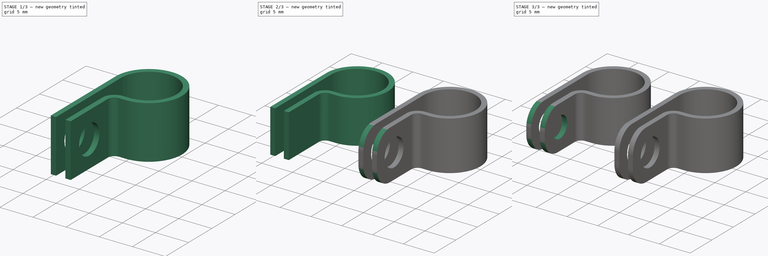
[diagram: build sequence overview — one tinted view per stage of 3, left to right]
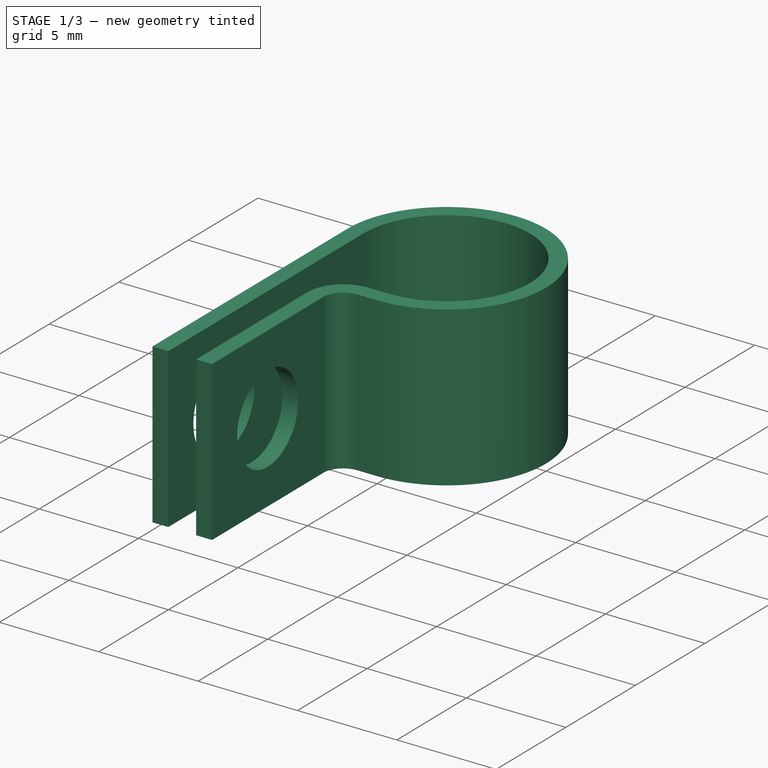
[diagram: stage 1 of 3 — iso view after this stage's code; geometry added in this stage tinted green]
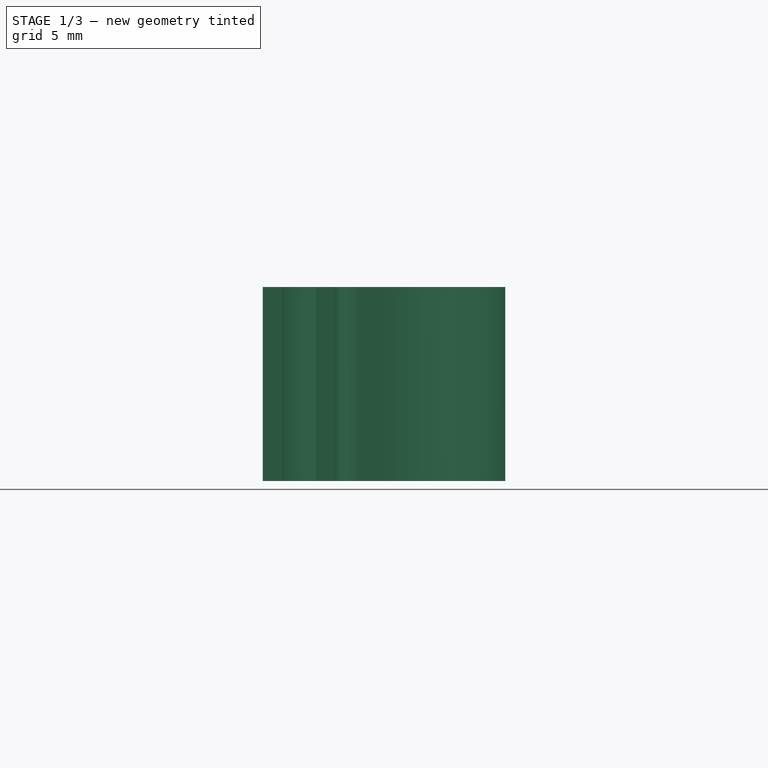
[diagram: stage 1 of 3 — front view after this stage's code; geometry added in this stage tinted green]
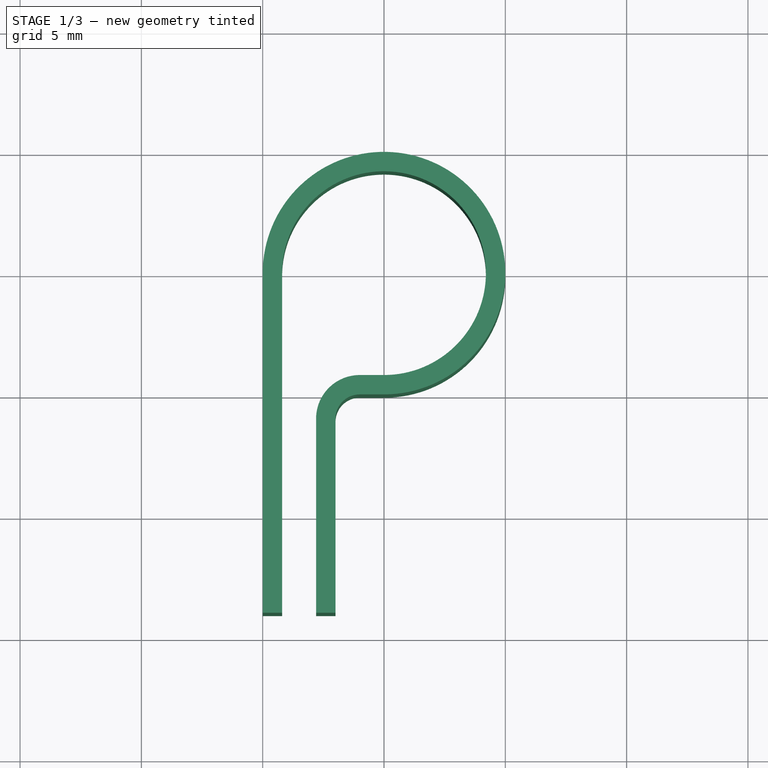
[diagram: stage 1 of 3 — top view after this stage's code; geometry added in this stage tinted green]
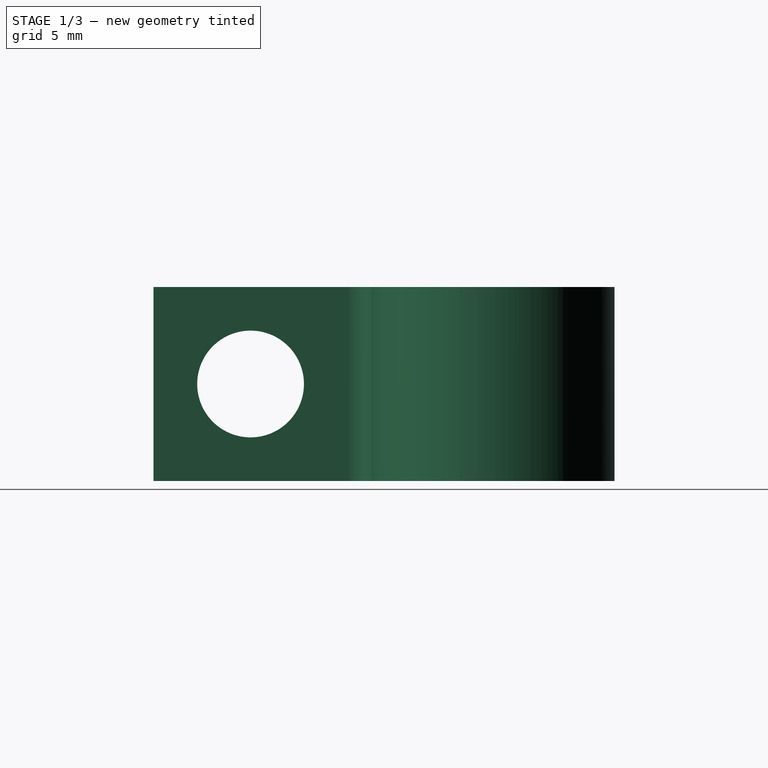
[diagram: stage 1 of 3 — right view after this stage's code; geometry added in this stage tinted green]
FCSTD DOCUMENT  (FreeCAD 0.16R)
Label: CableFixer
License: All rights reserved
LicenseURL: http://en.wikipedia.org/wiki/All_rights_reserved
objects: Sketcher::SketchObject×4, PartDesign::Pad×2, PartDesign::Pocket×2, PartDesign::Fillet×2
note: 14 computed .brp shape members not serialized (recipe doc carries the construction recipe); baked Part::Feature solids carry a one-line shape summary decoded from their .brp

FEATURE [Sketcher::SketchObject] Sketch002
  Placement = pos=(15,0,0) rot=(0,0,1;0rad)
  sketch-geometry (13):
    g0: ArcOfCircle CenterX=0 CenterY=0 CenterZ=0 NormalX=0 NormalY=0 NormalZ=1 Radius=5 StartAngle=4.71239 EndAngle=9.42478
    g1: LineSegment StartX=-5 StartY=0 StartZ=0 EndX=-5 EndY=-14 EndZ=0
    g2: ArcOfCircle CenterX=0 CenterY=0 CenterZ=0 NormalX=0 NormalY=0 NormalZ=1 Radius=4.2 StartAngle=4.71239 EndAngle=9.42478
    g3: LineSegment StartX=-4.2 StartY=0 StartZ=0 EndX=-4.2 EndY=-14 EndZ=0
    g4: LineSegment StartX=-4.2 StartY=-14 StartZ=0 EndX=-5 EndY=-14 EndZ=0
    g5: LineSegment StartX=0 StartY=-5 StartZ=0 EndX=-1 EndY=-5 EndZ=0
    g6: ArcOfCircle CenterX=-1 CenterY=-6 CenterZ=0 NormalX=0 NormalY=0 NormalZ=1 Radius=1 StartAngle=1.5708 EndAngle=3.14159
    g7: LineSegment StartX=-2 StartY=-6 StartZ=0 EndX=-2 EndY=-14 EndZ=0
    g8: LineSegment [constr] StartX=-5 StartY=-14 StartZ=0 EndX=-2 EndY=-14 EndZ=0
    g9: LineSegment StartX=-2 StartY=-14 StartZ=0 EndX=-2.8 EndY=-14 EndZ=0
    g10: LineSegment StartX=-2.8 StartY=-14 StartZ=0 EndX=-2.8 EndY=-6 EndZ=0
    g11: LineSegment StartX=0 StartY=-4.2 StartZ=0 EndX=-1 EndY=-4.2 EndZ=0
    g12: ArcOfCircle CenterX=-1 CenterY=-6 CenterZ=0 NormalX=0 NormalY=0 NormalZ=1 Radius=1.8 StartAngle=1.5708 EndAngle=3.14159
  constraints (38):
    c: PointOnObject(g0,g-1)
    c: PointOnObject(g0,g-2)
    c: Coincident(g1,g0)
    c: Vertical(g1)
    c: PointOnObject(g2,g-1)
    c: PointOnObject(g2,g-2)
    c: Tangent(g2,g3) = -1.5708
    c: Coincident(g3,g4)
    c: Coincident(g4,g1)
    c: Horizontal(g4)
    c: DistanceX(g5,g5) = 1
    c: DistanceY(g1,g1) = 14
    c: Coincident(g8,g1)
    c: Coincident(g8,g7)
    c: Horizontal(g8)
    c: DistanceX(g8,g8) = 3
    c: Coincident(g7,g9)
    c: Horizontal(g9)
    c: Coincident(g6,g12)
    c: Coincident(g5,g6)
    c: Horizontal(g5)
    c: Horizontal(g11)
    c: Coincident(g0,g5)
    c: Coincident(g2,g11)
    c: Coincident(g0,g2)
    c: Coincident(g0,g-1)
    c: Vertical(g7)
    c: Vertical(g10)
    c: Radius(g0) = 5
    c: Radius(g2) = 4.2
    c: Coincident(g11,g12)
    c: Coincident(g6,g7)
    c: Coincident(g10,g12)
    c: Tangent(g7,g6)
    c: Tangent(g5,g6)
    c: Tangent(g11,g12)
    c: Coincident(g9,g10)
    c: Tangent(g12,g10)
FEATURE [PartDesign::Pad] Pad001
  Length = 8
  Length2 = 100
  Placement = pos=(15,0,0) rot=(0,0,1;0rad)
  Sketch = -> Sketch002
  Type = 0
FEATURE [Sketcher::SketchObject] Sketch003
  ExternalGeometry = -> [Pad001]
  Placement = pos=(13,0,0) rot=(0.57735,0.57735,0.57735;2.0944rad)
  Support = -> Pad001 [Face10]
  sketch-geometry (3):
    g0: Circle CenterX=-10 CenterY=4 CenterZ=0 NormalX=0 NormalY=0 NormalZ=1 Radius=2.2
    g1: LineSegment [constr] StartX=-14 StartY=8 StartZ=0 EndX=-6 EndY=0 EndZ=0
    g2: LineSegment [constr] StartX=-14 StartY=0 StartZ=0 EndX=-6 EndY=8 EndZ=0
  constraints (7):
    c: Radius(g0) = 2.2
    c: Coincident(g1,g-4)
    c: Coincident(g1,g-3)
    c: Coincident(g2,g-4)
    c: Coincident(g2,g-3)
    c: PointOnObject(g0,g1)
    c: PointOnObject(g0,g2)
FEATURE [PartDesign::Pocket] Pocket001
  Length = 5
  Placement = pos=(15,0,0) rot=(0,0,1;0rad)
  Sketch = -> Sketch003
  Type = 1
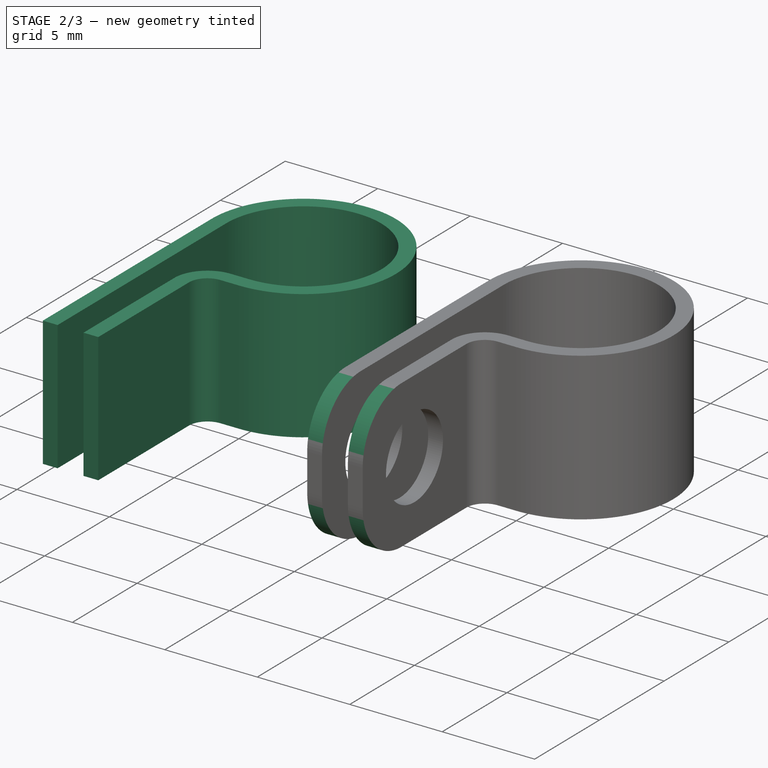
[diagram: stage 2 of 3 — iso view after this stage's code; geometry added in this stage tinted green]
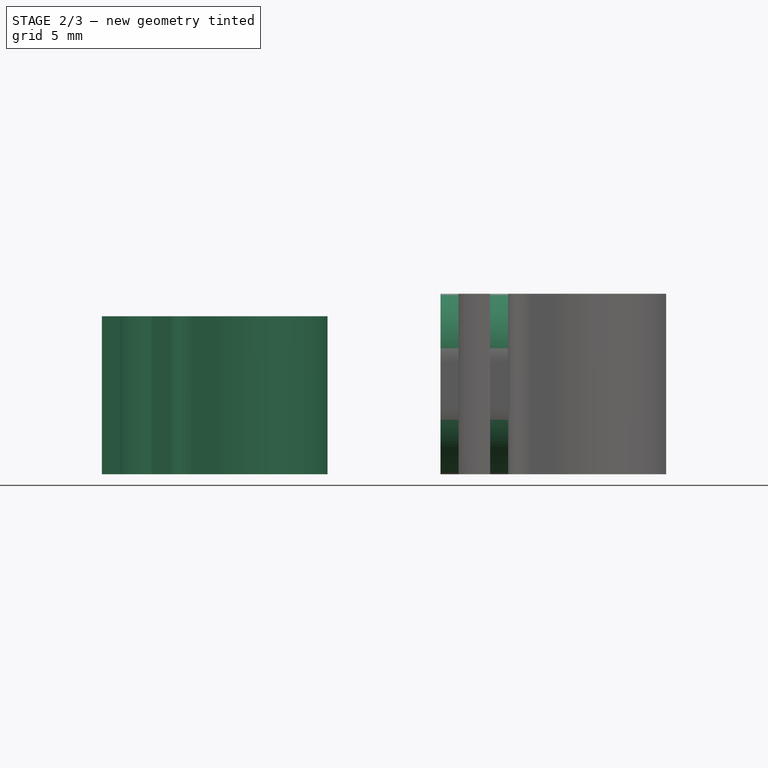
[diagram: stage 2 of 3 — front view after this stage's code; geometry added in this stage tinted green]
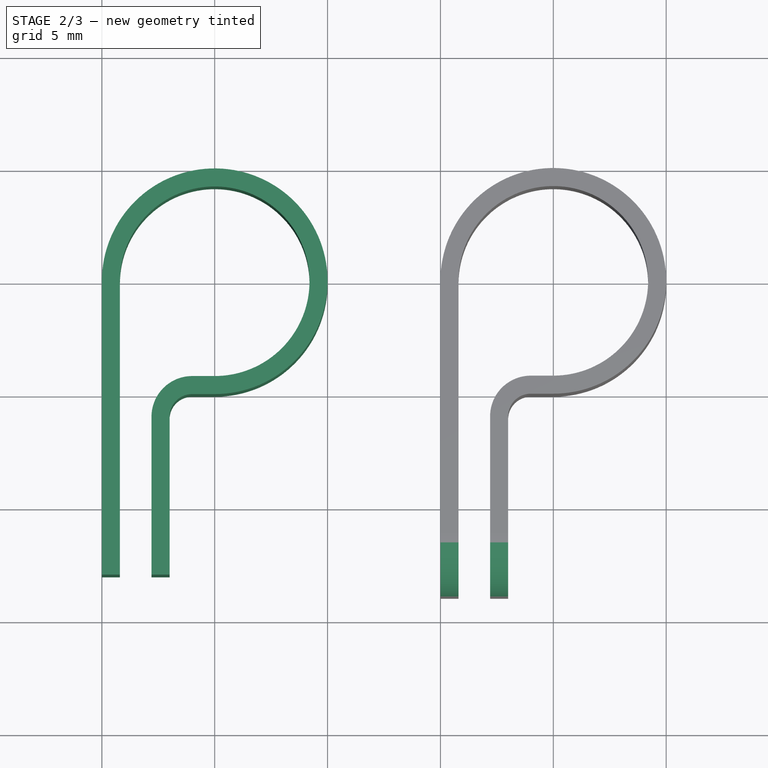
[diagram: stage 2 of 3 — top view after this stage's code; geometry added in this stage tinted green]
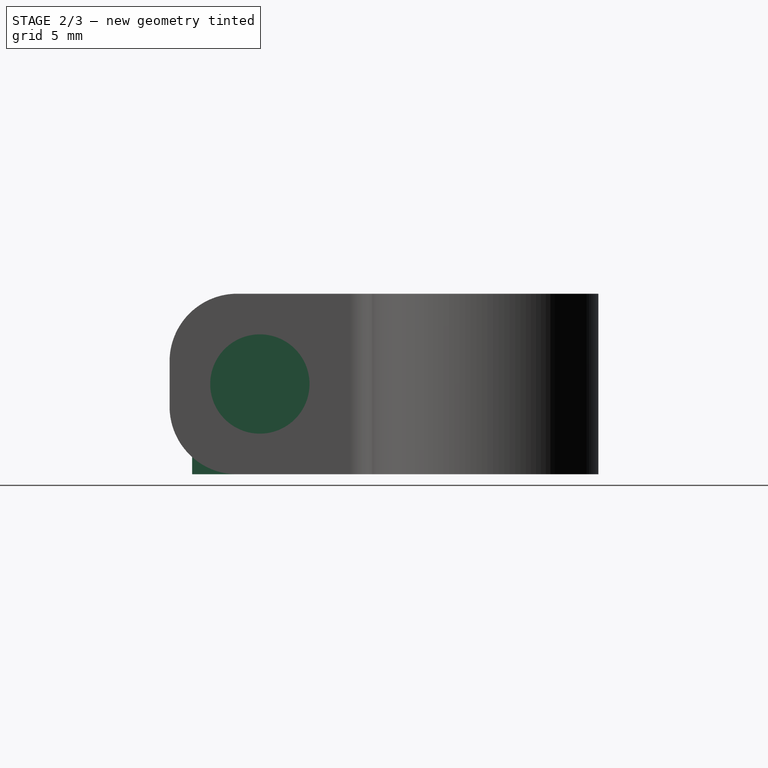
[diagram: stage 2 of 3 — right view after this stage's code; geometry added in this stage tinted green]
FEATURE [Sketcher::SketchObject] Sketch
  sketch-geometry (13):
    g0: ArcOfCircle CenterX=0 CenterY=0 CenterZ=0 NormalX=0 NormalY=0 NormalZ=1 Radius=5 StartAngle=4.71239 EndAngle=9.42478
    g1: LineSegment StartX=-5 StartY=0 StartZ=0 EndX=-5 EndY=-13 EndZ=0
    g2: ArcOfCircle CenterX=0 CenterY=0 CenterZ=0 NormalX=0 NormalY=0 NormalZ=1 Radius=4.2 StartAngle=4.71239 EndAngle=9.42478
    g3: LineSegment StartX=-4.2 StartY=0 StartZ=0 EndX=-4.2 EndY=-13 EndZ=0
    g4: LineSegment StartX=-4.2 StartY=-13 StartZ=0 EndX=-5 EndY=-13 EndZ=0
    g5: LineSegment StartX=0 StartY=-5 StartZ=0 EndX=-1 EndY=-5 EndZ=0
    g6: ArcOfCircle CenterX=-1 CenterY=-6 CenterZ=0 NormalX=0 NormalY=0 NormalZ=1 Radius=1 StartAngle=1.5708 EndAngle=3.14159
    g7: LineSegment StartX=-2 StartY=-6 StartZ=0 EndX=-2 EndY=-13 EndZ=0
    g8: LineSegment [constr] StartX=-5 StartY=-13 StartZ=0 EndX=-2 EndY=-13 EndZ=0
    g9: LineSegment StartX=-2 StartY=-13 StartZ=0 EndX=-2.8 EndY=-13 EndZ=0
    g10: LineSegment StartX=-2.8 StartY=-13 StartZ=0 EndX=-2.8 EndY=-6 EndZ=0
    g11: LineSegment StartX=0 StartY=-4.2 StartZ=0 EndX=-1 EndY=-4.2 EndZ=0
    g12: ArcOfCircle CenterX=-1 CenterY=-6 CenterZ=0 NormalX=0 NormalY=0 NormalZ=1 Radius=1.8 StartAngle=1.5708 EndAngle=3.14159
  constraints (38):
    c: PointOnObject(g0,g-1)
    c: PointOnObject(g0,g-2)
    c: Coincident(g1,g0)
    c: Vertical(g1)
    c: PointOnObject(g2,g-1)
    c: PointOnObject(g2,g-2)
    c: Tangent(g2,g3) = -1.5708
    c: Coincident(g3,g4)
    c: Coincident(g4,g1)
    c: Horizontal(g4)
    c: DistanceX(g5,g5) = 1
    c: DistanceY(g1,g1) = 13
    c: Coincident(g8,g1)
    c: Coincident(g8,g7)
    c: Horizontal(g8)
    c: DistanceX(g8,g8) = 3
    c: Coincident(g7,g9)
    c: Horizontal(g9)
    c: Coincident(g6,g12)
    c: Coincident(g5,g6)
    c: Horizontal(g5)
    c: Horizontal(g11)
    c: Coincident(g0,g5)
    c: Coincident(g2,g11)
    c: Coincident(g0,g2)
    c: Coincident(g0,g-1)
    c: Vertical(g7)
    c: Vertical(g10)
    c: Radius(g0) = 5
    c: Radius(g2) = 4.2
    c: Coincident(g11,g12)
    c: Coincident(g6,g7)
    c: Coincident(g10,g12)
    c: Tangent(g7,g6)
    c: Tangent(g5,g6)
    c: Tangent(g11,g12)
    c: Coincident(g9,g10)
    c: Tangent(g12,g10)
FEATURE [PartDesign::Pad] Pad
  Length = 7
  Length2 = 100
  Sketch = -> Sketch
  Type = 0
FEATURE [PartDesign::Fillet] Fillet001
  Base = -> Pocket001 [Edge18,Edge27,Edge21,Edge12]
  Placement = pos=(15,0,0) rot=(0,0,1;0rad)
  Radius = 3
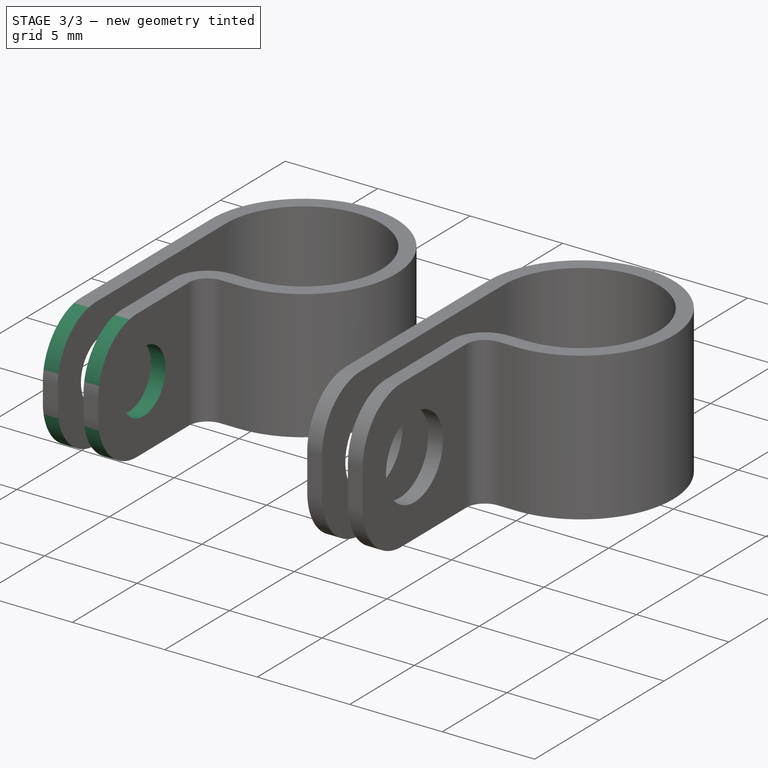
[diagram: stage 3 of 3 — iso view after this stage's code; geometry added in this stage tinted green]
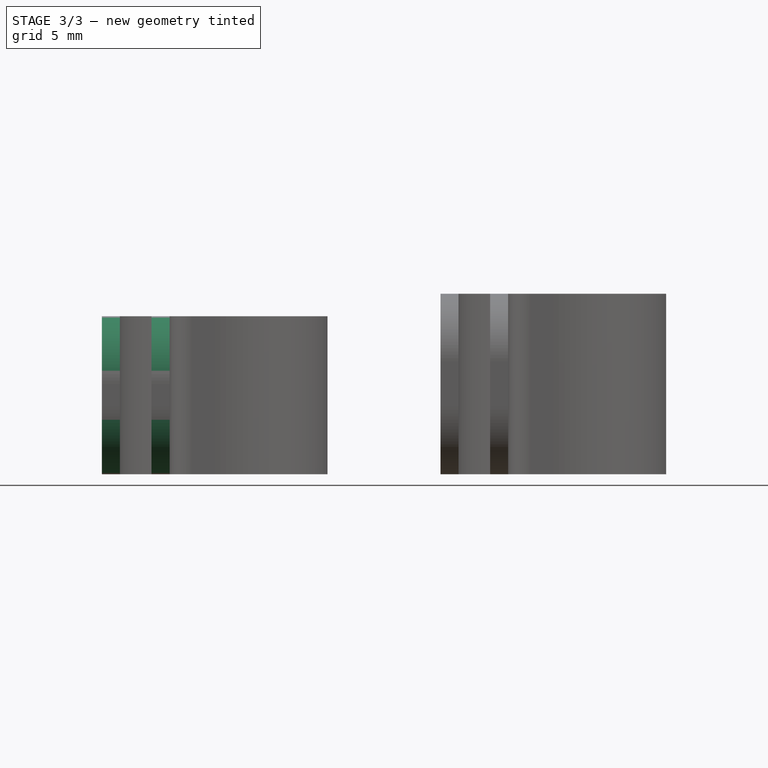
[diagram: stage 3 of 3 — front view after this stage's code; geometry added in this stage tinted green]
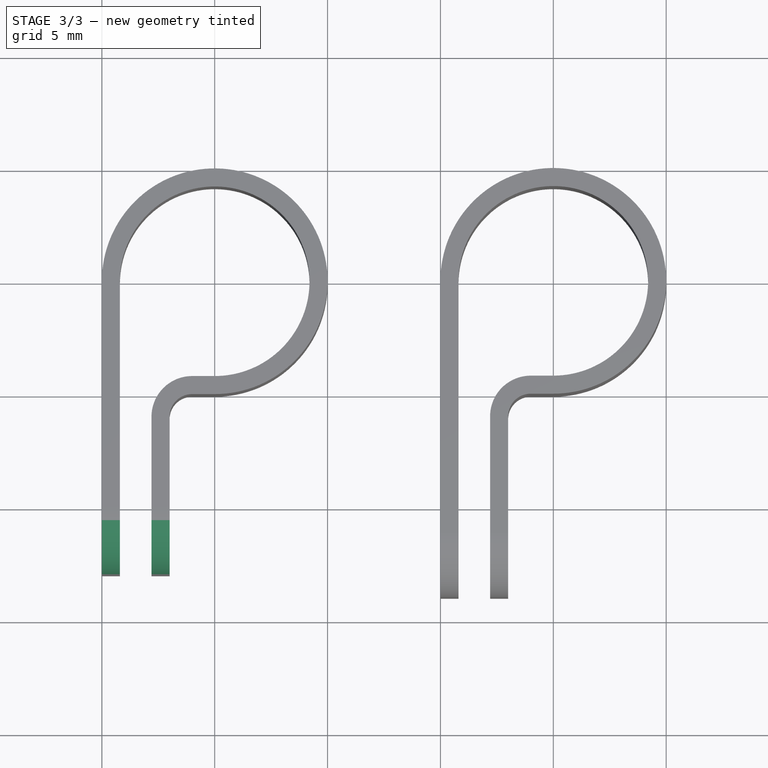
[diagram: stage 3 of 3 — top view after this stage's code; geometry added in this stage tinted green]
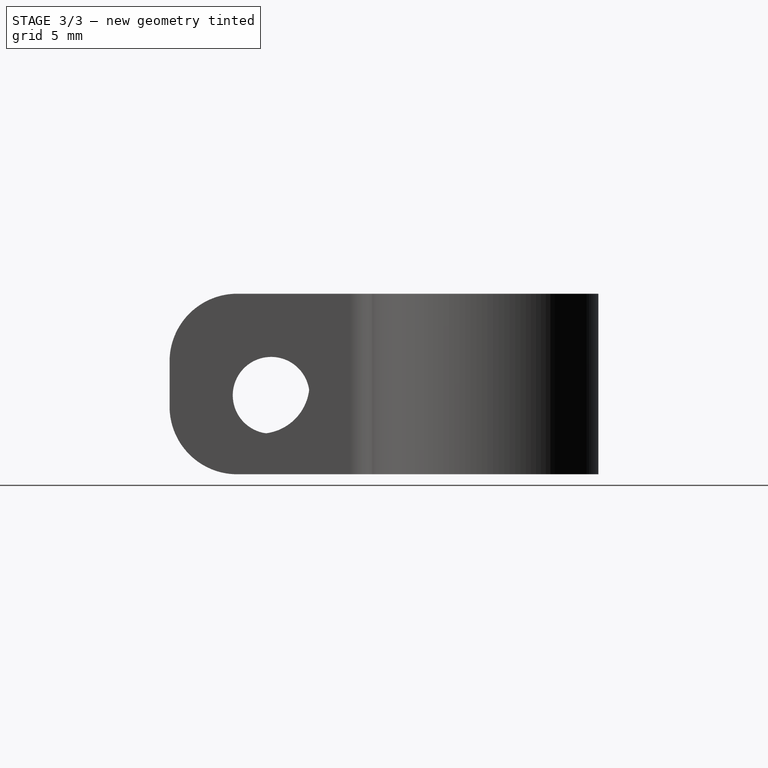
[diagram: stage 3 of 3 — right view after this stage's code; geometry added in this stage tinted green]
FEATURE [Sketcher::SketchObject] Sketch001
  ExternalGeometry = -> [Pad]
  Placement = pos=(-2,0,0) rot=(0.57735,0.57735,0.57735;2.0944rad)
  Support = -> Pad [Face10]
  sketch-geometry (3):
    g0: Circle CenterX=-9.5 CenterY=3.5 CenterZ=0 NormalX=0 NormalY=0 NormalZ=1 Radius=1.7
    g1: LineSegment [constr] StartX=-13 StartY=7 StartZ=0 EndX=-6 EndY=0 EndZ=0
    g2: LineSegment [constr] StartX=-13 StartY=0 StartZ=0 EndX=-6 EndY=7 EndZ=0
  constraints (7):
    c: Radius(g0) = 1.7
    c: Coincident(g1,g-4)
    c: Coincident(g1,g-3)
    c: Coincident(g2,g-4)
    c: Coincident(g2,g-3)
    c: PointOnObject(g0,g1)
    c: PointOnObject(g0,g2)
FEATURE [PartDesign::Pocket] Pocket
  Length = 5
  Sketch = -> Sketch001
  Type = 1
FEATURE [PartDesign::Fillet] Fillet
  Base = -> Pocket [Edge18,Edge27,Edge21,Edge12]
  Radius = 3
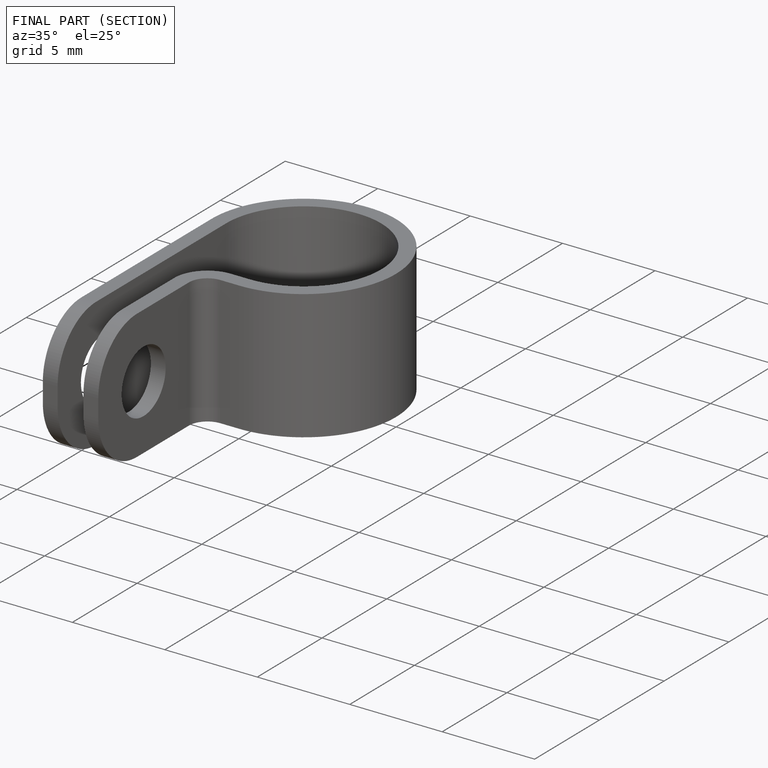
[diagram: finished part — half-section view (interior)]
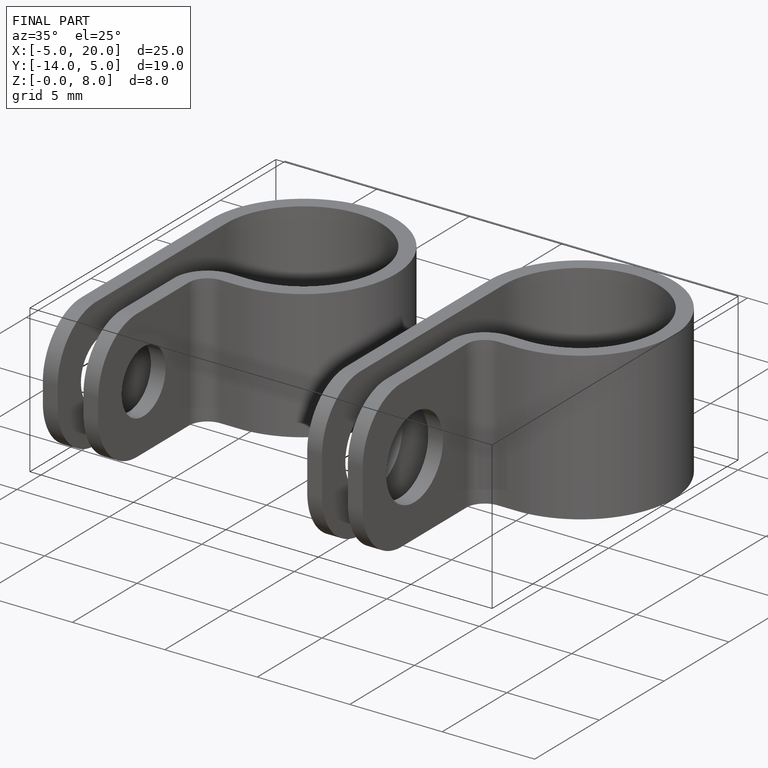
[diagram: finished part — iso view with bounding-box wireframe]
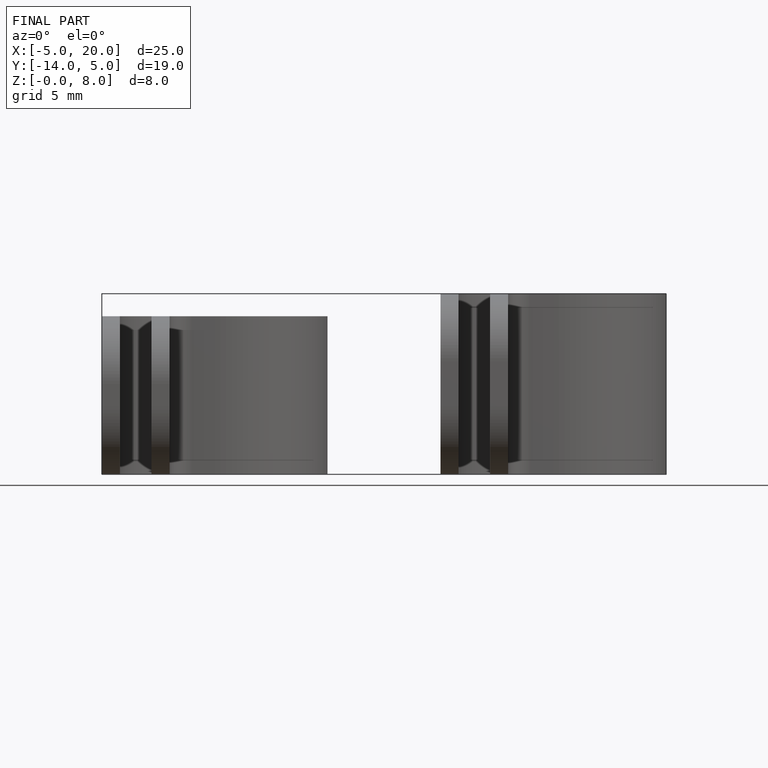
[diagram: finished part — front view with bounding-box wireframe]
